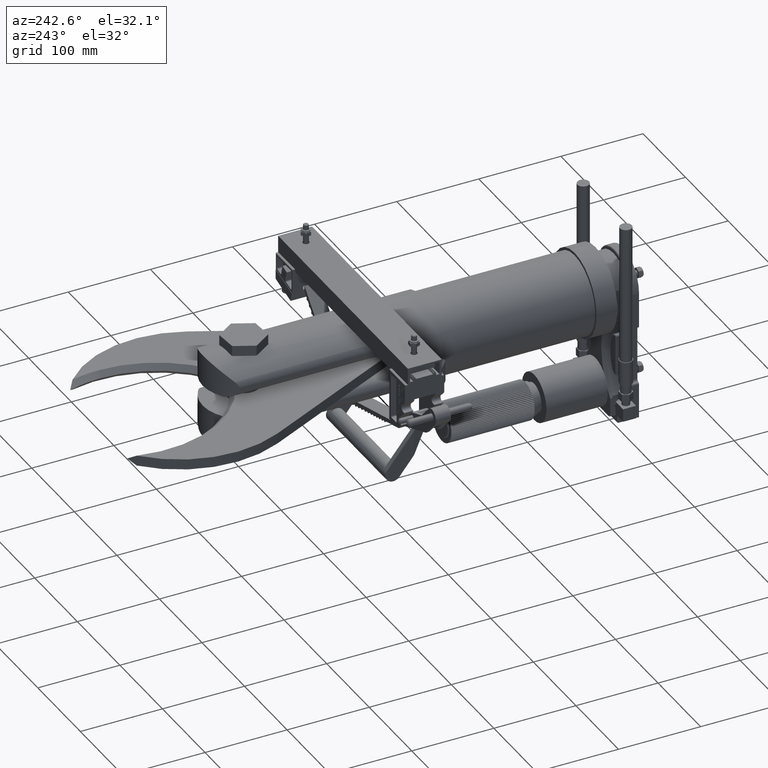
[diagram: clean part render]
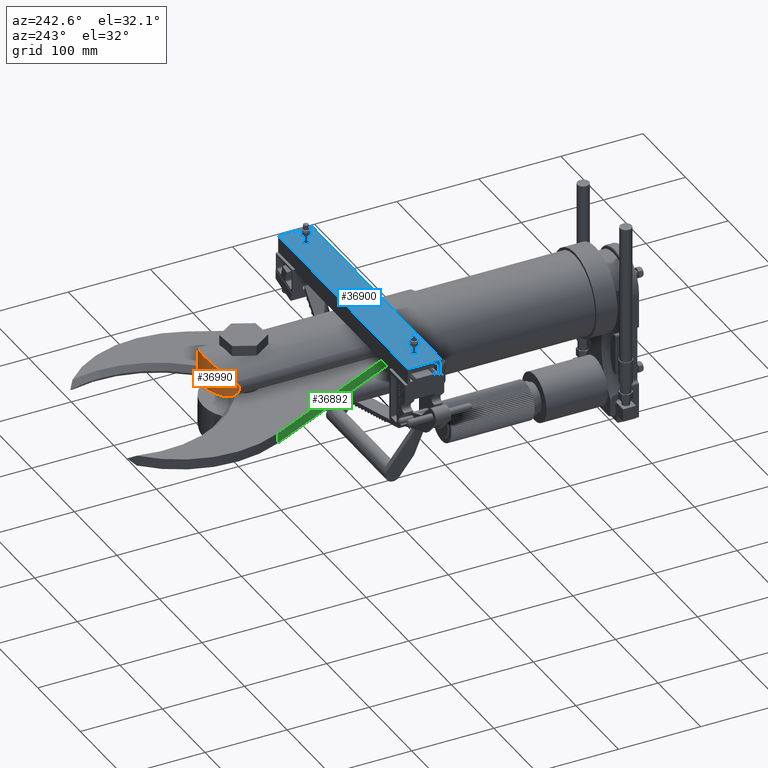
[diagram: same view with three faces highlighted in distinct colors, each labeled with its STEP entity id]
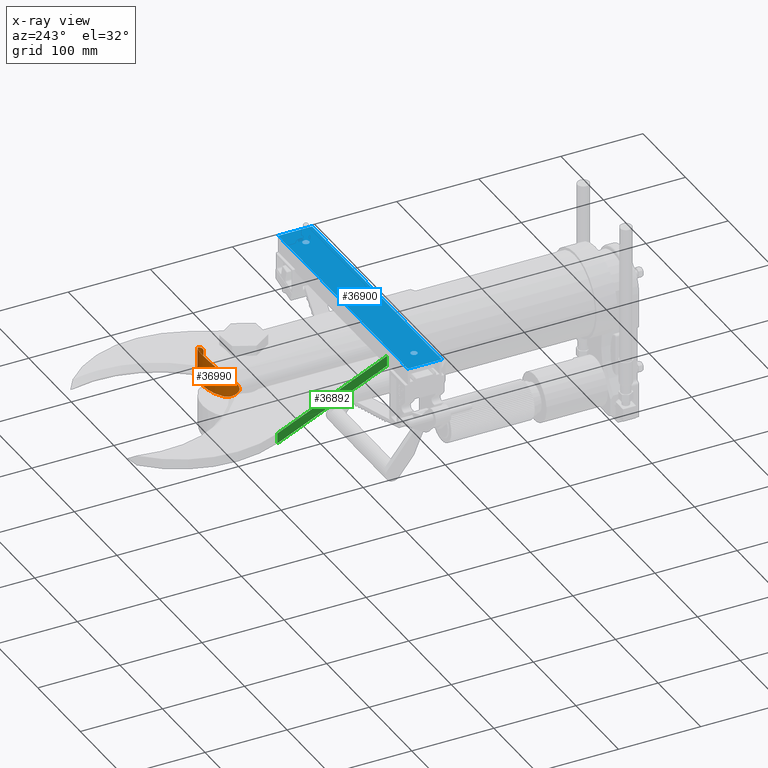
[diagram: x-ray of the same camera — body ghosted, the three highlighted faces saturated]
A machine part, auxiliary view with three faces highlighted in distinct colors.
The next image is the same camera in x-ray (body ghosted, the three faces saturated) — at least one of them is partly hidden behind the body in this view.
Their STEP definitions:

[orange] entity #36990 — the highlighted cylindrical surface (partial cylindrical patch) has radius 50.0063 mm, axis along (0, -0, -1).
#9966 = FACE_OUTER_BOUND ( 'NONE', #59769, .T. ) ;
#9972 = CYLINDRICAL_SURFACE ( 'NONE', #14180, 1.968750000000000700 ) ;
#14180 = AXIS2_PLACEMENT_3D ( 'NONE', #19504, #19503, #19500 ) ;
#14670 = AXIS2_PLACEMENT_3D ( 'NONE', #25101, #25112, #25113 ) ;
#15694 = B_SPLINE_CURVE_WITH_KNOTS ( 'NONE', 3,
 ( #22290, #22295, #22296, #22297, #22298, #22299, #22300, #22301, #22302, #22303, #22304, #22305, #22306, #22307, #22308, #22309, #22310, #22311, #22312, #22313, #22314, #22315, #22316, #22317 ),
 .UNSPECIFIED., .F., .F.,
 ( 4, 2, 2, 2, 2, 2, 2, 2, 2, 2, 2, 4 ),
 ( 0.04022775219274651900, 0.04636290679139898300, 0.05249806139005144100, 0.05863321598870390600, 0.06170079328803013100, 0.06476837058735635000, 0.07090352518600878700, 0.07397110248533503300, 0.07703867978466127900, 0.08317383438331378600, 0.08624141168264001800, 0.08930898898196625000 ),
 .UNSPECIFIED. ) ;
#15696 = B_SPLINE_CURVE_WITH_KNOTS ( 'NONE', 3,
 ( #22347, #22351, #22352, #22353, #22354, #22355, #22356, #22357, #22358, #22359, #22360, #22361, #22362, #22363, #22364, #22365, #22366, #22367, #22368, #22369, #22370, #22371 ),
 .UNSPECIFIED., .F., .F.,
 ( 4, 2, 2, 2, 2, 2, 2, 2, 2, 2, 4 ),
 ( 0.08930898898196625000, 0.09544698160097724000, 0.1015849742199882400, 0.1046539705294937700, 0.1077229668389992900, 0.1138609594580103100, 0.1169299557675158000, 0.1199989520770212800, 0.1261369446960322300, 0.1322749373150432000, 0.1384129299340541600 ),
 .UNSPECIFIED. ) ;
#15699 = B_SPLINE_CURVE_WITH_KNOTS ( 'NONE', 3,
 ( #25142, #25150, #25151, #25152, #25153, #25154, #25155, #25156, #25157, #25158, #25159, #25160, #25161, #25162, #25163, #25164, #25165, #25166, #25167, #25168, #25169, #25170, #25171, #25172, #25173, #25174, #25175, #25176, #25177, #25178, #25179, #25180, #25181, #25182 ),
 .UNSPECIFIED., .F., .F.,
 ( 4, 2, 2, 2, 2, 2, 2, 2, 2, 2, 2, 2, 2, 2, 2, 2, 4 ),
 ( 3.469446951953614200E-018, 0.004308508637556195300, 0.006462762956334333300, 0.008617017275112470400, 0.01292552591266874600, 0.01507978023144693900, 0.01723403455022513200, 0.01938828886900332100, 0.02046541602839243400, 0.02154254318778154800, 0.02369679750655986200, 0.02585105182533817600, 0.02692817898472734500, 0.02800530614411651800, 0.03015956046289476300, 0.03231381478167300000, 0.03446806910045124800 ),
 .UNSPECIFIED. ) ;
#15702 = B_SPLINE_CURVE_WITH_KNOTS ( 'NONE', 3,
 ( #25280, #25284, #25285, #25286, #25287, #25288, #25289, #25290, #25291, #25292, #25293, #25294, #25295, #25296, #25297, #25298, #25299, #25300, #25301, #25302, #25303, #25304, #25305, #25306, #25307, #25308, #25309, #25310, #25311, #25312, #25313, #25314, #25315, #25316, #25317, #25318, #25319, #25320, #25321, #25322 ),
 .UNSPECIFIED., .F., .F.,
 ( 4, 2, 2, 2, 2, 2, 2, 2, 2, 2, 2, 2, 2, 2, 2, 2, 2, 2, 2, 4 ),
 ( 1.551583845779545700E-017, 0.002163708106913376500, 0.004327416213826737300, 0.005409270267283464300, 0.006491124320740191400, 0.007572978374196917600, 0.008654832427653644600, 0.009736686481110369900, 0.01081854053456709700, 0.01190039458802382200, 0.01298224864148055100, 0.01514595674839400000, 0.01622781080185068500, 0.01730966485530737600, 0.01947337296222068400, 0.02163708106913399600, 0.02596449728296051600, 0.02812820538987376900, 0.03029191349678702100, 0.03461932971061341300 ),
 .UNSPECIFIED. ) ;
#19500 = DIRECTION ( 'NONE',  ( 1.000000000000000000, 0.0000000000000000000, 0.0000000000000000000 ) ) ;
#19503 = DIRECTION ( 'NONE',  ( -0.0000000000000000000, -0.0000000000000000000, 1.000000000000000000 ) ) ;
#19504 = CARTESIAN_POINT ( 'NONE',  ( 0.0000000000000000000, 17.74195933318638700, -4.931249999999998600 ) ) ;
#22290 = CARTESIAN_POINT ( 'NONE',  ( 1.538276014659649700, 18.97065110300615500, -3.482780612244898300 ) ) ;
#22295 = CARTESIAN_POINT ( 'NONE',  ( 1.497444702048970300, 19.02177037504725700, -3.530129560136711300 ) ) ;
#22296 = CARTESIAN_POINT ( 'NONE',  ( 1.453873390420040500, 19.07111395246622000, -3.576245983639709800 ) ) ;
#22297 = CARTESIAN_POINT ( 'NONE',  ( 1.360859027833986700, 19.16620037447368200, -3.665620443359451900 ) ) ;
#22298 = CARTESIAN_POINT ( 'NONE',  ( 1.311418919253013700, 19.21194350839218500, -3.708881520244784900 ) ) ;
#22299 = CARTESIAN_POINT ( 'NONE',  ( 1.206030054655290200, 19.29957435763830300, -3.792090984539916200 ) ) ;
#22300 = CARTESIAN_POINT ( 'NONE',  ( 1.150087230463017400, 19.34146471787116200, -3.832043313379956700 ) ) ;
#22301 = CARTESIAN_POINT ( 'NONE',  ( 1.060533299230780300, 19.40103469959537500, -3.889021626559151300 ) ) ;
#22302 = CARTESIAN_POINT ( 'NONE',  ( 1.029937827352213100, 19.42020810350105400, -3.907390174196453600 ) ) ;
#22303 = CARTESIAN_POINT ( 'NONE',  ( 0.9674527544473567900, 19.45698878808969200, -3.942670724747673100 ) ) ;
#22304 = CARTESIAN_POINT ( 'NONE',  ( 0.9355250803138655000, 19.47462165943938600, -3.959607232261347100 ) ) ;
#22305 = CARTESIAN_POINT ( 'NONE',  ( 0.8375965815526546000, 19.52516036782107300, -4.008200380343271100 ) ) ;
#22306 = CARTESIAN_POINT ( 'NONE',  ( 0.7694621773201304500, 19.55571962114525400, -4.037652690771786000 ) ) ;
#22307 = CARTESIAN_POINT ( 'NONE',  ( 0.6624477864033225800, 19.59630421974068100, -4.076818245066216500 ) ) ;
#22308 = CARTESIAN_POINT ( 'NONE',  ( 0.6259042274104553700, 19.60897457380625000, -4.089055445085844700 ) ) ;
#22309 = CARTESIAN_POINT ( 'NONE',  ( 0.5513634494164091300, 19.63232976176508200, -4.111624986311169600 ) ) ;
#22310 = CARTESIAN_POINT ( 'NONE',  ( 0.5137002262745566900, 19.64291360254486200, -4.121859670689025800 ) ) ;
#22311 = CARTESIAN_POINT ( 'NONE',  ( 0.3995150183001302000, 19.67134221103091500, -4.149361954350698800 ) ) ;
#22312 = CARTESIAN_POINT ( 'NONE',  ( 0.3218025351764977100, 19.68587841476081100, -4.163440930259173300 ) ) ;
#22313 = CARTESIAN_POINT ( 'NONE',  ( 0.2026997216843173200, 19.70065527986696800, -4.177756448232178100 ) ) ;
#22314 = CARTESIAN_POINT ( 'NONE',  ( 0.1625752530419638200, 19.70440628369774300, -4.181391389561660800 ) ) ;
#22315 = CARTESIAN_POINT ( 'NONE',  ( 0.08143737475467570400, 19.70944419982858500, -4.186273722671845800 ) ) ;
#22316 = CARTESIAN_POINT ( 'NONE',  ( 0.04074235854515359500, 19.71070933318639400, -4.187500000000000900 ) ) ;
#22317 = CARTESIAN_POINT ( 'NONE',  ( 0.0000000000000000000, 19.71070933318639000, -4.187500000000000000 ) ) ;
#22347 = CARTESIAN_POINT ( 'NONE',  ( 0.0000000000000000000, 19.71070933318639000, -4.187500000000000000 ) ) ;
#22351 = CARTESIAN_POINT ( 'NONE',  ( -0.08152241056359951800, 19.71070933318639700, -4.187500000000001800 ) ) ;
#22352 = CARTESIAN_POINT ( 'NONE',  ( -0.1617269734057844000, 19.70566842587297900, -4.182613142033256200 ) ) ;
#22353 = CARTESIAN_POINT ( 'NONE',  ( -0.3196863607864583500, 19.68620974024667400, -4.163761850038498300 ) ) ;
#22354 = CARTESIAN_POINT ( 'NONE',  ( -0.3974402451221549200, 19.67178841805321500, -4.149793875317686600 ) ) ;
#22355 = CARTESIAN_POINT ( 'NONE',  ( -0.5122836836487790800, 19.64330033643972900, -4.122233680541905100 ) ) ;
#22356 = CARTESIAN_POINT ( 'NONE',  ( -0.5503304269888842400, 19.63262711957173000, -4.111912491121815400 ) ) ;
#22357 = CARTESIAN_POINT ( 'NONE',  ( -0.6245491791895090300, 19.60942461535864800, -4.089490202567767500 ) ) ;
#22358 = CARTESIAN_POINT ( 'NONE',  ( -0.6608869769176549700, 19.59685955225032600, -4.077354464239386200 ) ) ;
#22359 = CARTESIAN_POINT ( 'NONE',  ( -0.7677305142193462400, 19.55644709721448700, -4.038354143015451900 ) ) ;
#22360 = CARTESIAN_POINT ( 'NONE',  ( -0.8360748700193427800, 19.52589351301930900, -4.008906097007224100 ) ) ;
#22361 = CARTESIAN_POINT ( 'NONE',  ( -0.9346533880204884700, 19.47509696554578100, -3.960063853104248500 ) ) ;
#22362 = CARTESIAN_POINT ( 'NONE',  ( -0.9669431231923825100, 19.45728078871760400, -3.942950973245809900 ) ) ;
#22363 = CARTESIAN_POINT ( 'NONE',  ( -1.029810455163829200, 19.42029098269135200, -3.907469517285550300 ) ) ;
#22364 = CARTESIAN_POINT ( 'NONE',  ( -1.060300092936520700, 19.40117756742125400, -3.889158584585590700 ) ) ;
#22365 = CARTESIAN_POINT ( 'NONE',  ( -1.149153347761415800, 19.34211015089804100, -3.832660061493077000 ) ) ;
#22366 = CARTESIAN_POINT ( 'NONE',  ( -1.204912320221722900, 19.30043695123991700, -3.792912601248467700 ) ) ;
#22367 = CARTESIAN_POINT ( 'NONE',  ( -1.310289015084239500, 19.21294841620007800, -3.709833234557153000 ) ) ;
#22368 = CARTESIAN_POINT ( 'NONE',  ( -1.359902457545063300, 19.16713108968999200, -3.666497885636348800 ) ) ;
#22369 = CARTESIAN_POINT ( 'NONE',  ( -1.453481502566407400, 19.07156105974587500, -3.576663634052935900 ) ) ;
#22370 = CARTESIAN_POINT ( 'NONE',  ( -1.497566853460609700, 19.02161744606107900, -3.529987910494444000 ) ) ;
#22371 = CARTESIAN_POINT ( 'NONE',  ( -1.538276014659649700, 18.97065110300615500, -3.482780612244898800 ) ) ;
#23938 = CIRCLE ( 'NONE', #14670, 1.968750000000001300 ) ;
#25101 = CARTESIAN_POINT ( 'NONE',  ( 0.0000000000000000000, 17.74195933318638700, -2.656250000000000000 ) ) ;
#25112 = DIRECTION ( 'NONE',  ( -0.0000000000000000000, -6.457728036936167600E-017, 1.000000000000000000 ) ) ;
#25113 = DIRECTION ( 'NONE',  ( 0.0000000000000000000, 1.000000000000000000, 0.0000000000000000000 ) ) ;
#25142 = CARTESIAN_POINT ( 'NONE',  ( 1.159623457204967100, 19.33294959085612100, -2.656250000000000000 ) ) ;
#25150 = CARTESIAN_POINT ( 'NONE',  ( 1.205949528924345800, 19.29918395389701800, -2.656250000000000000 ) ) ;
#25151 = CARTESIAN_POINT ( 'NONE',  ( 1.249891813269201200, 19.26407050337362000, -2.662555217669282800 ) ) ;
#25152 = CARTESIAN_POINT ( 'NONE',  ( 1.312667245269726300, 19.20949131406193500, -2.679754115981504800 ) ) ;
#25153 = CARTESIAN_POINT ( 'NONE',  ( 1.333072101588270500, 19.19097426282764500, -2.686803214963360300 ) ) ;
#25154 = CARTESIAN_POINT ( 'NONE',  ( 1.372833334388721300, 19.15336081056530300, -2.703473825173042100 ) ) ;
#25155 = CARTESIAN_POINT ( 'NONE',  ( 1.391904367456633200, 19.13453558209250700, -2.712973408030908900 ) ) ;
#25156 = CARTESIAN_POINT ( 'NONE',  ( 1.446884866799244700, 19.07809555505018700, -2.744819427997613500 ) ) ;
#25157 = CARTESIAN_POINT ( 'NONE',  ( 1.480591563713760300, 19.04047871050006100, -2.770409778333128100 ) ) ;
#25158 = CARTESIAN_POINT ( 'NONE',  ( 1.526959299106567000, 18.98492100141950400, -2.816341659756064000 ) ) ;
#25159 = CARTESIAN_POINT ( 'NONE',  ( 1.541578972675676600, 18.96670652138181600, -2.832819301948492200 ) ) ;
#25160 = CARTESIAN_POINT ( 'NONE',  ( 1.568858861166077000, 18.93156148421380900, -2.868111463206727500 ) ) ;
#25161 = CARTESIAN_POINT ( 'NONE',  ( 1.581567892462916600, 18.91457021520149300, -2.886963331256310500 ) ) ;
#25162 = CARTESIAN_POINT ( 'NONE',  ( 1.604968233618823300, 18.88233218807391000, -2.927732065191556400 ) ) ;
#25163 = CARTESIAN_POINT ( 'NONE',  ( 1.615677149606122000, 18.86704986712766900, -2.949745415787064000 ) ) ;
#25164 = CARTESIAN_POINT ( 'NONE',  ( 1.629459738242585300, 18.84690445564827900, -2.984753214507789700 ) ) ;
#25165 = CARTESIAN_POINT ( 'NONE',  ( 1.633694051789794400, 18.84062581965879700, -2.996790568152736700 ) ) ;
#25166 = CARTESIAN_POINT ( 'NONE',  ( 1.641365417001731100, 18.82913175337636200, -3.021732628533571500 ) ) ;
#25167 = CARTESIAN_POINT ( 'NONE',  ( 1.644821418153316100, 18.82388725428414500, -3.034726256184141500 ) ) ;
#25168 = CARTESIAN_POINT ( 'NONE',  ( 1.653656859526626300, 18.81037470171481400, -3.074571827467077700 ) ) ;
#25169 = CARTESIAN_POINT ( 'NONE',  ( 1.657513482933413700, 18.80433073518123900, -3.102098041561041500 ) ) ;
#25170 = CARTESIAN_POINT ( 'NONE',  ( 1.660438908366708600, 18.79975258967110100, -3.159535757189605200 ) ) ;
#25171 = CARTESIAN_POINT ( 'NONE',  ( 1.659413437100467600, 18.80137525051018000, -3.187904327284435200 ) ) ;
#25172 = CARTESIAN_POINT ( 'NONE',  ( 1.654381784822740200, 18.80920208542174200, -3.229817671995301300 ) ) ;
#25173 = CARTESIAN_POINT ( 'NONE',  ( 1.652108577925470900, 18.81272497130921900, -3.243678340101363100 ) ) ;
#25174 = CARTESIAN_POINT ( 'NONE',  ( 1.646621966301147400, 18.82114324018929400, -3.270345402720996800 ) ) ;
#25175 = CARTESIAN_POINT ( 'NONE',  ( 1.643396190530060900, 18.82605769062635300, -3.283276482232353500 ) ) ;
#25176 = CARTESIAN_POINT ( 'NONE',  ( 1.632417115491447300, 18.84257998725458800, -3.321032570294070800 ) ) ;
#25177 = CARTESIAN_POINT ( 'NONE',  ( 1.623279154074554800, 18.85607859138477900, -3.344971830843208100 ) ) ;
#25178 = CARTESIAN_POINT ( 'NONE',  ( 1.602754450065057500, 18.88540811049920600, -3.389117897837520500 ) ) ;
#25179 = CARTESIAN_POINT ( 'NONE',  ( 1.591312919541755900, 18.90132850457908400, -3.409566636902717600 ) ) ;
#25180 = CARTESIAN_POINT ( 'NONE',  ( 1.566332617352276900, 18.93486159879520900, -3.447990928696333100 ) ) ;
#25181 = CARTESIAN_POINT ( 'NONE',  ( 1.552743343034978900, 18.95253855046643600, -3.466003958897780500 ) ) ;
#25182 = CARTESIAN_POINT ( 'NONE',  ( 1.538276014659649700, 18.97065110300615500, -3.482780612244898300 ) ) ;
#25280 = CARTESIAN_POINT ( 'NONE',  ( -1.538276014659649700, 18.97065110300615500, -3.482780612244898800 ) ) ;
#25284 = CARTESIAN_POINT ( 'NONE',  ( -1.552767597703342600, 18.95250818453130700, -3.465975832615400000 ) ) ;
#25285 = CARTESIAN_POINT ( 'NONE',  ( -1.566274938811354800, 18.93493746070458200, -3.448071539838059300 ) ) ;
#25286 = CARTESIAN_POINT ( 'NONE',  ( -1.591265684997882300, 18.90139346949321100, -3.409647367374040600 ) ) ;
#25287 = CARTESIAN_POINT ( 'NONE',  ( -1.602754139691013400, 18.88541059046381700, -3.389138754277232200 ) ) ;
#25288 = CARTESIAN_POINT ( 'NONE',  ( -1.618258171888158600, 18.86325247661887900, -3.355761132257840900 ) ) ;
#25289 = CARTESIAN_POINT ( 'NONE',  ( -1.623135425346414800, 18.85617252351105200, -3.344180064862333400 ) ) ;
#25290 = CARTESIAN_POINT ( 'NONE',  ( -1.632072321794864300, 18.84304042871889400, -3.320424066884012100 ) ) ;
#25291 = CARTESIAN_POINT ( 'NONE',  ( -1.636156046761704500, 18.83695419546318200, -3.308201992795424000 ) ) ;
#25292 = CARTESIAN_POINT ( 'NONE',  ( -1.643480468971545600, 18.82592995358000800, -3.282958757347183900 ) ) ;
#25293 = CARTESIAN_POINT ( 'NONE',  ( -1.646721814658905800, 18.82099102917062800, -3.269938225820735700 ) ) ;
#25294 = CARTESIAN_POINT ( 'NONE',  ( -1.652243332243657400, 18.81251718163201000, -3.242941875290922500 ) ) ;
#25295 = CARTESIAN_POINT ( 'NONE',  ( -1.654470671147340500, 18.80906416509071700, -3.229205557988269200 ) ) ;
#25296 = CARTESIAN_POINT ( 'NONE',  ( -1.657779463789217100, 18.80391657027224600, -3.201381714923565300 ) ) ;
#25297 = CARTESIAN_POINT ( 'NONE',  ( -1.658866274228455700, 18.80221403728962000, -3.187269317068083000 ) ) ;
#25298 = CARTESIAN_POINT ( 'NONE',  ( -1.659823442651191500, 18.80071496720738000, -3.158608588670392100 ) ) ;
#25299 = CARTESIAN_POINT ( 'NONE',  ( -1.659678128609903200, 18.80094328099551900, -3.144116345899833100 ) ) ;
#25300 = CARTESIAN_POINT ( 'NONE',  ( -1.658182013079300100, 18.80328440299477000, -3.115737454779776300 ) ) ;
#25301 = CARTESIAN_POINT ( 'NONE',  ( -1.656837877775894500, 18.80538647238355300, -3.101720822956544100 ) ) ;
#25302 = CARTESIAN_POINT ( 'NONE',  ( -1.653012182112005600, 18.81132351783224600, -3.074011460936332700 ) ) ;
#25303 = CARTESIAN_POINT ( 'NONE',  ( -1.650507840628925700, 18.81519263248796000, -3.060247941110237700 ) ) ;
#25304 = CARTESIAN_POINT ( 'NONE',  ( -1.641620532359655300, 18.82877841981689200, -3.020550654590008900 ) ) ;
#25305 = CARTESIAN_POINT ( 'NONE',  ( -1.633857381626346200, 18.84048394480074200, -2.995818058120431900 ) ) ;
#25306 = CARTESIAN_POINT ( 'NONE',  ( -1.619942535011421400, 18.86081150018170800, -2.960634554880620800 ) ) ;
#25307 = CARTESIAN_POINT ( 'NONE',  ( -1.614917297887020100, 18.86806011223785300, -2.949236452524871300 ) ) ;
#25308 = CARTESIAN_POINT ( 'NONE',  ( -1.604345060823184800, 18.88307184709870900, -2.927405543050539500 ) ) ;
#25309 = CARTESIAN_POINT ( 'NONE',  ( -1.598775290705203500, 18.89086866173425200, -2.916912732793048900 ) ) ;
#25310 = CARTESIAN_POINT ( 'NONE',  ( -1.581277303769639500, 18.91496091147100600, -2.886519254551766200 ) ) ;
#25311 = CARTESIAN_POINT ( 'NONE',  ( -1.568566157394678300, 18.93194884718281700, -2.867692105678616000 ) ) ;
#25312 = CARTESIAN_POINT ( 'NONE',  ( -1.541181825151138200, 18.96720764082413500, -2.832347233318550200 ) ) ;
#25313 = CARTESIAN_POINT ( 'NONE',  ( -1.526454369980469800, 18.98553848796518300, -2.815805462781641100 ) ) ;
#25314 = CARTESIAN_POINT ( 'NONE',  ( -1.480321748964058800, 19.04077651176666900, -2.770216048616282600 ) ) ;
#25315 = CARTESIAN_POINT ( 'NONE',  ( -1.446714624927525100, 19.07827955233359100, -2.744701753165337300 ) ) ;
#25316 = CARTESIAN_POINT ( 'NONE',  ( -1.391736023778304300, 19.13470374459609100, -2.712885498767678700 ) ) ;
#25317 = CARTESIAN_POINT ( 'NONE',  ( -1.372564985908172800, 19.15362062585940000, -2.703349841462783200 ) ) ;
#25318 = CARTESIAN_POINT ( 'NONE',  ( -1.332884094512352600, 19.19114608318388800, -2.686735996152051200 ) ) ;
#25319 = CARTESIAN_POINT ( 'NONE',  ( -1.312527516803682100, 19.20961539244691000, -2.679710941708568100 ) ) ;
#25320 = CARTESIAN_POINT ( 'NONE',  ( -1.249855316400189800, 19.26409702839339700, -2.662555039865320600 ) ) ;
#25321 = CARTESIAN_POINT ( 'NONE',  ( -1.205954603338023100, 19.29918025531425800, -2.656250000000000900 ) ) ;
#25322 = CARTESIAN_POINT ( 'NONE',  ( -1.159623457204967100, 19.33294959085612100, -2.656250000000000000 ) ) ;
#29675 = CARTESIAN_POINT ( 'NONE',  ( 0.0000000000000000000, 19.71070933318639000, -4.187500000000000000 ) ) ;
#29676 = CARTESIAN_POINT ( 'NONE',  ( 1.538276014659649700, 18.97065110300615500, -3.482780612244898300 ) ) ;
#29682 = CARTESIAN_POINT ( 'NONE',  ( -1.538276014659649700, 18.97065110300615500, -3.482780612244898800 ) ) ;
#29688 = CARTESIAN_POINT ( 'NONE',  ( 1.159623457204967100, 19.33294959085612100, -2.656250000000000000 ) ) ;
#29689 = CARTESIAN_POINT ( 'NONE',  ( -1.159623457204967100, 19.33294959085612100, -2.656250000000000000 ) ) ;
#36990 = ADVANCED_FACE ( 'NONE', ( #9966 ), #9972, .T. ) ;
#37516 = EDGE_CURVE ( 'NONE', #38955, #38954, #15694, .T. ) ;
#37522 = EDGE_CURVE ( 'NONE', #38954, #38961, #15696, .T. ) ;
#37529 = EDGE_CURVE ( 'NONE', #38967, #38968, #23938, .T. ) ;
#37546 = EDGE_CURVE ( 'NONE', #38967, #38955, #15699, .T. ) ;
#37559 = EDGE_CURVE ( 'NONE', #38961, #38968, #15702, .T. ) ;
#38954 = VERTEX_POINT ( 'NONE', #29675 ) ;
#38955 = VERTEX_POINT ( 'NONE', #29676 ) ;
#38961 = VERTEX_POINT ( 'NONE', #29682 ) ;
#38967 = VERTEX_POINT ( 'NONE', #29688 ) ;
#38968 = VERTEX_POINT ( 'NONE', #29689 ) ;
#47729 = ORIENTED_EDGE ( 'NONE', *, *, #37529, .F. ) ;
#47730 = ORIENTED_EDGE ( 'NONE', *, *, #37546, .T. ) ;
#47731 = ORIENTED_EDGE ( 'NONE', *, *, #37516, .T. ) ;
#47732 = ORIENTED_EDGE ( 'NONE', *, *, #37522, .T. ) ;
#47733 = ORIENTED_EDGE ( 'NONE', *, *, #37559, .T. ) ;
#59769 = EDGE_LOOP ( 'NONE', ( #47729, #47730, #47731, #47732, #47733 ) ) ;

[blue] entity #36900 — the highlighted planar face has unit normal (0, -0, -1).
#9825 = FACE_BOUND ( 'NONE', #42642, .T. ) ;
#9841 = FACE_BOUND ( 'NONE', #42307, .T. ) ;
#9845 = FACE_OUTER_BOUND ( 'NONE', #42317, .T. ) ;
#13109 = CARTESIAN_POINT ( 'NONE',  ( 0.0000000000000000000, 0.0000000000000000000, 6.000000000000000900 ) ) ;
#13114 = PLANE ( 'NONE',  #14006 ) ;
#13115 = DIRECTION ( 'NONE',  ( 0.0000000000000000000, 1.000000000000000000, 0.0000000000000000000 ) ) ;
#13116 = DIRECTION ( 'NONE',  ( 0.0000000000000000000, -0.0000000000000000000, 1.000000000000000000 ) ) ;
#14006 = AXIS2_PLACEMENT_3D ( 'NONE', #13109, #13115, #13116 ) ;
#15361 = AXIS2_PLACEMENT_3D ( 'NONE', #34222, #34223, #34224 ) ;
#15372 = AXIS2_PLACEMENT_3D ( 'NONE', #34326, #34332, #34333 ) ;
#15373 = AXIS2_PLACEMENT_3D ( 'NONE', #34254, #34258, #34259 ) ;
#15376 = AXIS2_PLACEMENT_3D ( 'NONE', #34328, #34330, #34331 ) ;
#29148 = CARTESIAN_POINT ( 'NONE',  ( 1.534896296187620900E-017, -1.707404996040164500E-017, 4.843750000000000900 ) ) ;
#29162 = CARTESIAN_POINT ( 'NONE',  ( 1.534896296187636000E-017, -1.707404996040164500E-017, -5.156250000000000000 ) ) ;
#29167 = CARTESIAN_POINT ( 'NONE',  ( 0.8125000000000000000, 0.0000000000000000000, 6.000000000000000900 ) ) ;
#29176 = CARTESIAN_POINT ( 'NONE',  ( 0.8125000000000000000, 0.0000000000000000000, -6.000000000000000900 ) ) ;
#29189 = CARTESIAN_POINT ( 'NONE',  ( -3.786143274801066800E-018, -1.707404996040164500E-017, -4.843750000000000900 ) ) ;
#29192 = CARTESIAN_POINT ( 'NONE',  ( -0.8125000000000000000, 0.0000000000000000000, 6.000000000000000900 ) ) ;
#29195 = CARTESIAN_POINT ( 'NONE',  ( -3.786143274801218600E-018, -1.707404996040164500E-017, 5.156250000000000000 ) ) ;
#29223 = CARTESIAN_POINT ( 'NONE',  ( -0.8125000000000000000, 0.0000000000000000000, -6.000000000000000900 ) ) ;
#34222 = CARTESIAN_POINT ( 'NONE',  ( -3.786143274801066800E-018, -1.707404996040164500E-017, -5.000000000000000000 ) ) ;
#34223 = DIRECTION ( 'NONE',  ( -0.0000000000000000000, 1.000000000000000000, -0.0000000000000000000 ) ) ;
#34224 = DIRECTION ( 'NONE',  ( 0.0000000000000000000, 0.0000000000000000000, 1.000000000000000000 ) ) ;
#34254 = CARTESIAN_POINT ( 'NONE',  ( -3.786143274801218600E-018, -1.707404996040164500E-017, 5.000000000000000000 ) ) ;
#34258 = DIRECTION ( 'NONE',  ( -0.0000000000000000000, 1.000000000000000000, -0.0000000000000000000 ) ) ;
#34259 = DIRECTION ( 'NONE',  ( 0.0000000000000000000, 0.0000000000000000000, 1.000000000000000000 ) ) ;
#34266 = CARTESIAN_POINT ( 'NONE',  ( 0.8125000000000000000, 0.0000000000000000000, 6.000000000000000900 ) ) ;
#34269 = DIRECTION ( 'NONE',  ( -0.0000000000000000000, -0.0000000000000000000, -1.000000000000000000 ) ) ;
#34317 = CARTESIAN_POINT ( 'NONE',  ( 0.0000000000000000000, 0.0000000000000000000, -6.000000000000000900 ) ) ;
#34322 = CARTESIAN_POINT ( 'NONE',  ( 0.0000000000000000000, 0.0000000000000000000, 6.000000000000000900 ) ) ;
#34323 = DIRECTION ( 'NONE',  ( 1.000000000000000000, 0.0000000000000000000, 0.0000000000000000000 ) ) ;
#34326 = CARTESIAN_POINT ( 'NONE',  ( -3.786143274801218600E-018, -1.707404996040164500E-017, 5.000000000000000000 ) ) ;
#34327 = DIRECTION ( 'NONE',  ( 1.000000000000000000, 0.0000000000000000000, 0.0000000000000000000 ) ) ;
#34328 = CARTESIAN_POINT ( 'NONE',  ( -3.786143274801066800E-018, -1.707404996040164500E-017, -5.000000000000000000 ) ) ;
#34330 = DIRECTION ( 'NONE',  ( -0.0000000000000000000, 1.000000000000000000, -0.0000000000000000000 ) ) ;
#34331 = DIRECTION ( 'NONE',  ( 0.0000000000000000000, 0.0000000000000000000, 1.000000000000000000 ) ) ;
#34332 = DIRECTION ( 'NONE',  ( -0.0000000000000000000, 1.000000000000000000, -0.0000000000000000000 ) ) ;
#34333 = DIRECTION ( 'NONE',  ( 0.0000000000000000000, 0.0000000000000000000, 1.000000000000000000 ) ) ;
#34334 = CARTESIAN_POINT ( 'NONE',  ( -0.8125000000000000000, 0.0000000000000000000, 6.000000000000000900 ) ) ;
#34335 = DIRECTION ( 'NONE',  ( -0.0000000000000000000, -0.0000000000000000000, -1.000000000000000000 ) ) ;
#36900 = ADVANCED_FACE ( 'NONE', ( #9825, #9841, #9845 ), #13114, .F. ) ;
#38427 = VERTEX_POINT ( 'NONE', #29148 ) ;
#38441 = VERTEX_POINT ( 'NONE', #29162 ) ;
#38446 = VERTEX_POINT ( 'NONE', #29167 ) ;
#38455 = VERTEX_POINT ( 'NONE', #29176 ) ;
#38468 = VERTEX_POINT ( 'NONE', #29189 ) ;
#38471 = VERTEX_POINT ( 'NONE', #29192 ) ;
#38474 = VERTEX_POINT ( 'NONE', #29195 ) ;
#38502 = VERTEX_POINT ( 'NONE', #29223 ) ;
#40103 = ORIENTED_EDGE ( 'NONE', *, *, #49166, .T. ) ;
#40104 = ORIENTED_EDGE ( 'NONE', *, *, #49051, .T. ) ;
#40105 = ORIENTED_EDGE ( 'NONE', *, *, #49169, .T. ) ;
#40106 = ORIENTED_EDGE ( 'NONE', *, *, #49085, .T. ) ;
#40107 = ORIENTED_EDGE ( 'NONE', *, *, #49164, .T. ) ;
#40108 = ORIENTED_EDGE ( 'NONE', *, *, #49097, .F. ) ;
#40109 = ORIENTED_EDGE ( 'NONE', *, *, #49159, .F. ) ;
#40110 = ORIENTED_EDGE ( 'NONE', *, *, #49171, .T. ) ;
#42307 = EDGE_LOOP ( 'NONE', ( #40105, #40106 ) ) ;
#42317 = EDGE_LOOP ( 'NONE', ( #40107, #40108, #40109, #40110 ) ) ;
#42642 = EDGE_LOOP ( 'NONE', ( #40103, #40104 ) ) ;
#43393 = CIRCLE ( 'NONE', #15361, 0.1562499999999997200 ) ;
#43407 = LINE ( 'NONE', #34266, #43421 ) ;
#43414 = CIRCLE ( 'NONE', #15373, 0.1562499999999997200 ) ;
#43421 = VECTOR ( 'NONE', #34269, 39.37007874015748100 ) ;
#43467 = LINE ( 'NONE', #34322, #43468 ) ;
#43468 = VECTOR ( 'NONE', #34323, 39.37007874015748100 ) ;
#43470 = LINE ( 'NONE', #34317, #43474 ) ;
#43474 = VECTOR ( 'NONE', #34327, 39.37007874015748100 ) ;
#43476 = LINE ( 'NONE', #34334, #43477 ) ;
#43477 = VECTOR ( 'NONE', #34335, 39.37007874015748100 ) ;
#43478 = CIRCLE ( 'NONE', #15376, 0.1562499999999997200 ) ;
#43480 = CIRCLE ( 'NONE', #15372, 0.1562499999999997200 ) ;
#49051 = EDGE_CURVE ( 'NONE', #38441, #38468, #43393, .T. ) ;
#49085 = EDGE_CURVE ( 'NONE', #38427, #38474, #43414, .T. ) ;
#49097 = EDGE_CURVE ( 'NONE', #38446, #38455, #43407, .T. ) ;
#49159 = EDGE_CURVE ( 'NONE', #38471, #38446, #43467, .T. ) ;
#49164 = EDGE_CURVE ( 'NONE', #38502, #38455, #43470, .T. ) ;
#49166 = EDGE_CURVE ( 'NONE', #38468, #38441, #43478, .T. ) ;
#49169 = EDGE_CURVE ( 'NONE', #38474, #38427, #43480, .T. ) ;
#49171 = EDGE_CURVE ( 'NONE', #38471, #38502, #43476, .T. ) ;

[green] entity #36892 — the highlighted planar face has unit normal (0.9011, 0.4337, -0).
#9815 = FACE_OUTER_BOUND ( 'NONE', #59662, .T. ) ;
#13074 = CARTESIAN_POINT ( 'NONE',  ( 0.7876068982538685400, 11.27935136971833600, -1.656250000000000200 ) ) ;
#13079 = PLANE ( 'NONE',  #13986 ) ;
#13084 = DIRECTION ( 'NONE',  ( -0.9010739926254935900, 0.4336653776980035100, 0.0000000000000000000 ) ) ;
#13085 = DIRECTION ( 'NONE',  ( -0.4336653776980034500, -0.9010739926254934800, 0.0000000000000000000 ) ) ;
#13986 = AXIS2_PLACEMENT_3D ( 'NONE', #13074, #13084, #13085 ) ;
#24869 = LINE ( 'NONE', #27126, #24870 ) ;
#24870 = VECTOR ( 'NONE', #27130, 39.37007874015748900 ) ;
#24872 = VECTOR ( 'NONE', #27151, 39.37007874015748100 ) ;
#24874 = VECTOR ( 'NONE', #27142, 39.37007874015748100 ) ;
#24882 = LINE ( 'NONE', #27137, #24874 ) ;
#24884 = LINE ( 'NONE', #27150, #24872 ) ;
#24889 = LINE ( 'NONE', #27152, #24890 ) ;
#24890 = VECTOR ( 'NONE', #27153, 39.37007874015748900 ) ;
#27126 = CARTESIAN_POINT ( 'NONE',  ( 0.7876068982538685400, 11.27935136971833600, -1.656250000000000200 ) ) ;
#27130 = DIRECTION ( 'NONE',  ( 0.4336653776980034500, 0.9010739926254934800, 0.0000000000000000000 ) ) ;
#27137 = CARTESIAN_POINT ( 'NONE',  ( 0.7876068982538685400, 11.27935136971833600, -1.656250000000000200 ) ) ;
#27142 = DIRECTION ( 'NONE',  ( -0.0000000000000000000, -0.0000000000000000000, -1.000000000000000000 ) ) ;
#27150 = CARTESIAN_POINT ( 'NONE',  ( 4.157813847308679200, 18.28199900481217800, -1.656250000000000200 ) ) ;
#27151 = DIRECTION ( 'NONE',  ( -0.0000000000000000000, -0.0000000000000000000, -1.000000000000000000 ) ) ;
#27152 = CARTESIAN_POINT ( 'NONE',  ( 0.7876068982538685400, 11.27935136971833600, -2.156250000000000000 ) ) ;
#27153 = DIRECTION ( 'NONE',  ( 0.4336653776980034500, 0.9010739926254934800, 0.0000000000000000000 ) ) ;
#29629 = CARTESIAN_POINT ( 'NONE',  ( 0.7876068982538685400, 11.27935136971833600, -2.156250000000000000 ) ) ;
#29630 = CARTESIAN_POINT ( 'NONE',  ( 0.7876068982538685400, 11.27935136971833600, -1.656250000000000200 ) ) ;
#29632 = CARTESIAN_POINT ( 'NONE',  ( 4.157813847308679200, 18.28199900481217800, -2.156250000000000000 ) ) ;
#29633 = CARTESIAN_POINT ( 'NONE',  ( 4.157813847308679200, 18.28199900481217800, -1.656250000000000200 ) ) ;
#36892 = ADVANCED_FACE ( 'NONE', ( #9815 ), #13079, .F. ) ;
#38035 = EDGE_CURVE ( 'NONE', #38909, #38912, #24869, .T. ) ;
#38040 = EDGE_CURVE ( 'NONE', #38909, #38908, #24882, .T. ) ;
#38044 = EDGE_CURVE ( 'NONE', #38912, #38911, #24884, .T. ) ;
#38045 = EDGE_CURVE ( 'NONE', #38908, #38911, #24889, .T. ) ;
#38908 = VERTEX_POINT ( 'NONE', #29629 ) ;
#38909 = VERTEX_POINT ( 'NONE', #29630 ) ;
#38911 = VERTEX_POINT ( 'NONE', #29632 ) ;
#38912 = VERTEX_POINT ( 'NONE', #29633 ) ;
#47564 = ORIENTED_EDGE ( 'NONE', *, *, #38045, .T. ) ;
#47565 = ORIENTED_EDGE ( 'NONE', *, *, #38044, .F. ) ;
#47566 = ORIENTED_EDGE ( 'NONE', *, *, #38035, .F. ) ;
#47567 = ORIENTED_EDGE ( 'NONE', *, *, #38040, .T. ) ;
#59662 = EDGE_LOOP ( 'NONE', ( #47564, #47565, #47566, #47567 ) ) ;